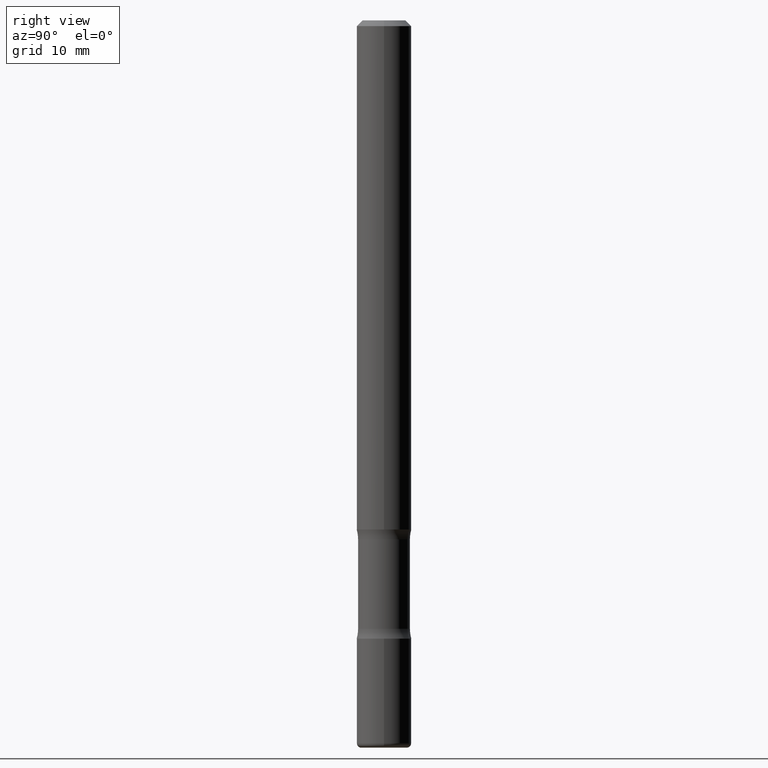
[diagram: clean part render]
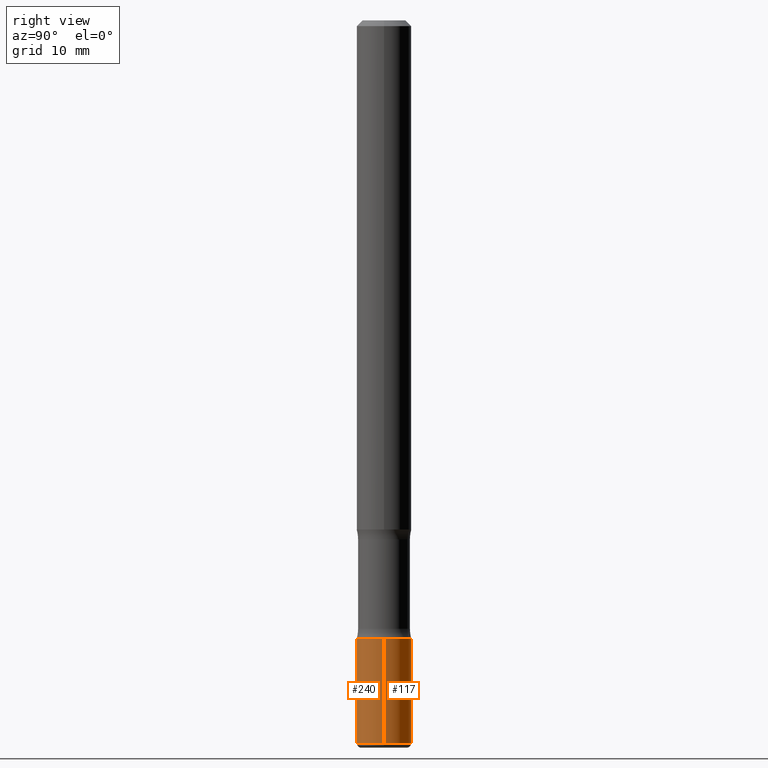
[diagram: same view with one multi-face feature highlighted, each face labeled with its STEP entity id]
A machine part, right view. The highlighted faces form ONE feature: a constant-radius fillet chain: 2 tangent blend faces with common blend radius 2.3813 mm. The faces share edges in the B-rep.
Their STEP definitions:
[1] entity #117 (Cylinder):
#10 = DIRECTION ( 'NONE',  ( -2.445468806185136877E-29, 3.491481338843145188E-15, 1.000000000000000000 ) ) ;
#22 = DIRECTION ( 'NONE',  ( 1.000000000000000000, -6.982962677686266711E-15, 4.876176775795935793E-29 ) ) ;
#48 = CARTESIAN_POINT ( 'NONE',  ( -0.09375000000000005551, 6.661338147750943187E-16, -4.611501647113976798E-30 ) ) ;
#53 = EDGE_CURVE ( 'NONE', #393, #265, #242, .T. ) ;
#55 = LINE ( 'NONE', #377, #193 ) ;
#57 = DIRECTION ( 'NONE',  ( -2.445468806185136597E-29, 3.491481338843145583E-15, 1.000000000000000000 ) ) ;
#82 = AXIS2_PLACEMENT_3D ( 'NONE', #150, #57, #22 ) ;
#84 = EDGE_CURVE ( 'NONE', #138, #265, #154, .T. ) ;
#103 = CARTESIAN_POINT ( 'NONE',  ( 0.09375000000000026368, -9.330983878058304973E-15, -2.484999999999999876 ) ) ;
#113 = DIRECTION ( 'NONE',  ( 1.000000000000000000, -6.982962677686270655E-15, 0.000000000000000000 ) ) ;
#117 = ADVANCED_FACE ( 'NONE', ( #195 ), #355, .T. ) ;
#128 = DIRECTION ( 'NONE',  ( -2.445468806185136597E-29, 3.491481338843145583E-15, 1.000000000000000000 ) ) ;
#138 = VERTEX_POINT ( 'NONE', #510 ) ;
#150 = CARTESIAN_POINT ( 'NONE',  ( 0.000000000000000000, 0.000000000000000000, 0.000000000000000000 ) ) ;
#154 = CIRCLE ( 'NONE', #489, 0.09375000000000002776 ) ;
#157 = DIRECTION ( 'NONE',  ( 1.000000000000000000, -6.982962677686267499E-15, 0.000000000000000000 ) ) ;
#186 = ORIENTED_EDGE ( 'NONE', *, *, #84, .F. ) ;
#193 = VECTOR ( 'NONE', #10, 39.37007874015748143 ) ;
#195 = FACE_OUTER_BOUND ( 'NONE', #398, .T. ) ;
#202 = DIRECTION ( 'NONE',  ( -2.445468806185136877E-29, 3.491481338843145188E-15, 1.000000000000000000 ) ) ;
#224 = CARTESIAN_POINT ( 'NONE',  ( -0.09375000000000026368, -8.010197312250121178E-15, -2.484999999999999876 ) ) ;
#239 = ORIENTED_EDGE ( 'NONE', *, *, #53, .T. ) ;
#242 = LINE ( 'NONE', #48, #511 ) ;
#253 = CARTESIAN_POINT ( 'NONE',  ( -0.09375000000000002776, -7.381730671258356228E-15, -2.125000000000000000 ) ) ;
#265 = VERTEX_POINT ( 'NONE', #253 ) ;
#282 = CARTESIAN_POINT ( 'NONE',  ( 6.076989983370064174E-29, -8.676331127025216680E-15, -2.484999999999999876 ) ) ;
#292 = VERTEX_POINT ( 'NONE', #103 ) ;
#295 = ORIENTED_EDGE ( 'NONE', *, *, #343, .T. ) ;
#343 = EDGE_CURVE ( 'NONE', #292, #393, #384, .T. ) ;
#353 = AXIS2_PLACEMENT_3D ( 'NONE', #282, #128, #157 ) ;
#355 = CYLINDRICAL_SURFACE ( 'NONE', #82, 0.09375000000000005551 ) ;
#377 = CARTESIAN_POINT ( 'NONE',  ( 0.09375000000000005551, -6.546527510330878985E-16, 4.571415727308692608E-30 ) ) ;
#384 = CIRCLE ( 'NONE', #353, 0.09375000000000006939 ) ;
#393 = VERTEX_POINT ( 'NONE', #224 ) ;
#398 = EDGE_LOOP ( 'NONE', ( #295, #239, #186, #532 ) ) ;
#444 = EDGE_CURVE ( 'NONE', #292, #138, #55, .T. ) ;
#489 = AXIS2_PLACEMENT_3D ( 'NONE', #503, #514, #113 ) ;
#503 = CARTESIAN_POINT ( 'NONE',  ( 5.196621213143415268E-29, -7.419397845041685201E-15, -2.125000000000000000 ) ) ;
#510 = CARTESIAN_POINT ( 'NONE',  ( 0.09375000000000002776, -8.074050596074771916E-15, -2.125000000000000000 ) ) ;
#511 = VECTOR ( 'NONE', #202, 39.37007874015748143 ) ;
#514 = DIRECTION ( 'NONE',  ( -2.445468806185136597E-29, 3.491481338843145583E-15, 1.000000000000000000 ) ) ;
#532 = ORIENTED_EDGE ( 'NONE', *, *, #444, .F. ) ;
[2] entity #240 (Cylinder):
#10 = DIRECTION ( 'NONE',  ( -2.445468806185136877E-29, 3.491481338843145188E-15, 1.000000000000000000 ) ) ;
#48 = CARTESIAN_POINT ( 'NONE',  ( -0.09375000000000005551, 6.661338147750943187E-16, -4.611501647113976798E-30 ) ) ;
#53 = EDGE_CURVE ( 'NONE', #393, #265, #242, .T. ) ;
#55 = LINE ( 'NONE', #377, #193 ) ;
#61 = CARTESIAN_POINT ( 'NONE',  ( 5.196621213143415268E-29, -7.419397845041685201E-15, -2.125000000000000000 ) ) ;
#71 = CIRCLE ( 'NONE', #430, 0.09375000000000006939 ) ;
#73 = ORIENTED_EDGE ( 'NONE', *, *, #283, .F. ) ;
#100 = CIRCLE ( 'NONE', #547, 0.09375000000000002776 ) ;
#103 = CARTESIAN_POINT ( 'NONE',  ( 0.09375000000000026368, -9.330983878058304973E-15, -2.484999999999999876 ) ) ;
#137 = ORIENTED_EDGE ( 'NONE', *, *, #347, .T. ) ;
#138 = VERTEX_POINT ( 'NONE', #510 ) ;
#139 = DIRECTION ( 'NONE',  ( -2.445468806185136597E-29, 3.491481338843145583E-15, 1.000000000000000000 ) ) ;
#193 = VECTOR ( 'NONE', #10, 39.37007874015748143 ) ;
#202 = DIRECTION ( 'NONE',  ( -2.445468806185136877E-29, 3.491481338843145188E-15, 1.000000000000000000 ) ) ;
#212 = DIRECTION ( 'NONE',  ( -2.445468806185136597E-29, 3.491481338843145583E-15, 1.000000000000000000 ) ) ;
#217 = DIRECTION ( 'NONE',  ( 1.000000000000000000, -6.982962677686266711E-15, 4.876176775795935793E-29 ) ) ;
#224 = CARTESIAN_POINT ( 'NONE',  ( -0.09375000000000026368, -8.010197312250121178E-15, -2.484999999999999876 ) ) ;
#231 = ORIENTED_EDGE ( 'NONE', *, *, #444, .T. ) ;
#240 = ADVANCED_FACE ( 'NONE', ( #415 ), #330, .T. ) ;
#242 = LINE ( 'NONE', #48, #511 ) ;
#251 = DIRECTION ( 'NONE',  ( 1.000000000000000000, -6.982962677686267499E-15, 0.000000000000000000 ) ) ;
#253 = CARTESIAN_POINT ( 'NONE',  ( -0.09375000000000002776, -7.381730671258356228E-15, -2.125000000000000000 ) ) ;
#265 = VERTEX_POINT ( 'NONE', #253 ) ;
#283 = EDGE_CURVE ( 'NONE', #265, #138, #100, .T. ) ;
#292 = VERTEX_POINT ( 'NONE', #103 ) ;
#323 = AXIS2_PLACEMENT_3D ( 'NONE', #471, #212, #217 ) ;
#330 = CYLINDRICAL_SURFACE ( 'NONE', #323, 0.09375000000000005551 ) ;
#347 = EDGE_CURVE ( 'NONE', #393, #292, #71, .T. ) ;
#377 = CARTESIAN_POINT ( 'NONE',  ( 0.09375000000000005551, -6.546527510330878985E-16, 4.571415727308692608E-30 ) ) ;
#378 = CARTESIAN_POINT ( 'NONE',  ( 6.076989983370064174E-29, -8.676331127025216680E-15, -2.484999999999999876 ) ) ;
#393 = VERTEX_POINT ( 'NONE', #224 ) ;
#415 = FACE_OUTER_BOUND ( 'NONE', #528, .T. ) ;
#430 = AXIS2_PLACEMENT_3D ( 'NONE', #378, #520, #251 ) ;
#443 = ORIENTED_EDGE ( 'NONE', *, *, #53, .F. ) ;
#444 = EDGE_CURVE ( 'NONE', #292, #138, #55, .T. ) ;
#471 = CARTESIAN_POINT ( 'NONE',  ( 0.000000000000000000, 0.000000000000000000, 0.000000000000000000 ) ) ;
#479 = DIRECTION ( 'NONE',  ( 1.000000000000000000, -6.982962677686270655E-15, 0.000000000000000000 ) ) ;
#510 = CARTESIAN_POINT ( 'NONE',  ( 0.09375000000000002776, -8.074050596074771916E-15, -2.125000000000000000 ) ) ;
#511 = VECTOR ( 'NONE', #202, 39.37007874015748143 ) ;
#520 = DIRECTION ( 'NONE',  ( -2.445468806185136597E-29, 3.491481338843145583E-15, 1.000000000000000000 ) ) ;
#528 = EDGE_LOOP ( 'NONE', ( #443, #137, #231, #73 ) ) ;
#547 = AXIS2_PLACEMENT_3D ( 'NONE', #61, #139, #479 ) ;